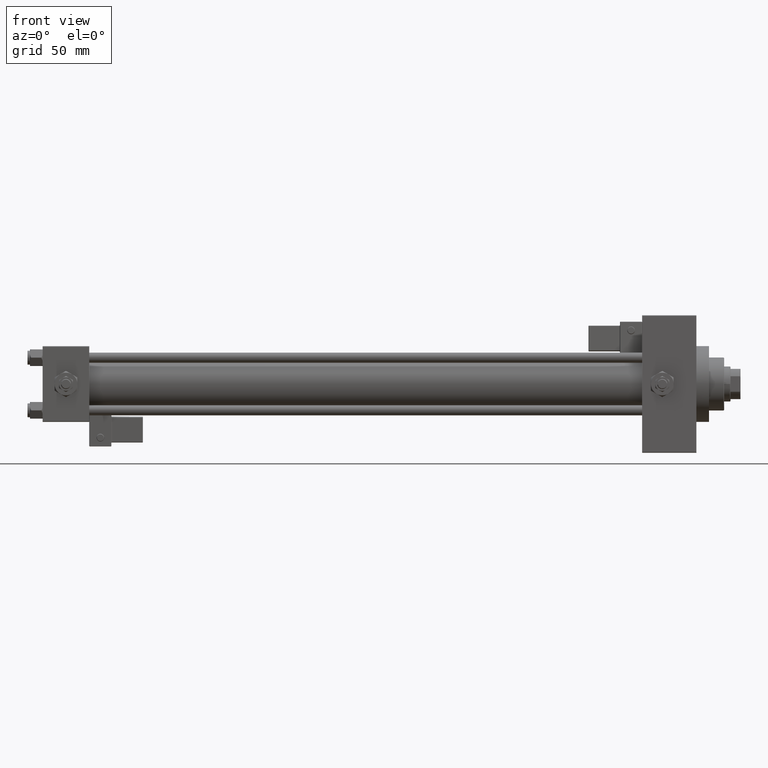
[diagram: clean part render]
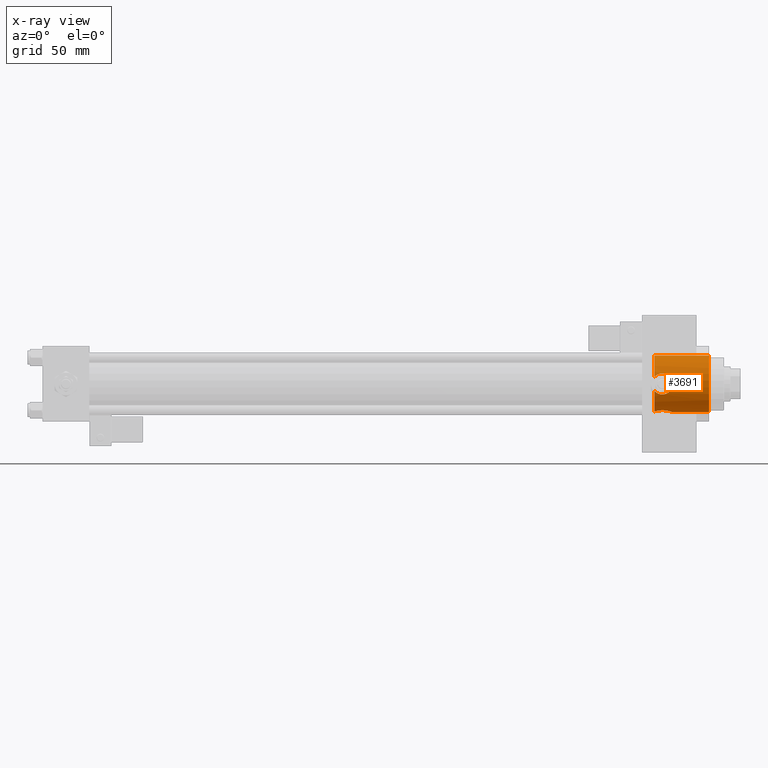
[diagram: x-ray — body ghosted, one internal face saturated and labeled with its STEP entity id]
A machine part, front view, then the same camera in x-ray: the body is ghosted and one INTERNAL B-rep face — a face not visible from any outside direction — is saturated and labeled: STEP entity #3691.
In plain terms, the highlighted cylindrical surface (edge-blend (fillet) strip) has radius 22.5 mm, axis along (1, 0, 0).
Its self-contained STEP definition (entity closure, byte-faithful):
#223 = CARTESIAN_POINT ( 'NONE',  ( 498.7930968072332121, -22.30658703498862039, 2.954723655153333794 ) ) ;
#357 = CARTESIAN_POINT ( 'NONE',  ( 485.5602391363179322, -21.59259860989613600, 6.336013317517917187 ) ) ;
#472 = CARTESIAN_POINT ( 'NONE',  ( 496.5068656785023791, -21.61137517055395207, 6.273349121788507787 ) ) ;
#984 = CARTESIAN_POINT ( 'NONE',  ( 491.0000000000000000, -20.90122245228732467, -8.330000000000026716 ) ) ;
#1228 = CARTESIAN_POINT ( 'NONE',  ( 499.2761281519647127, -22.47988508193238388, 1.094792065016547689 ) ) ;
#2081 = VERTEX_POINT ( 'NONE', #25986 ) ;
#2187 = CARTESIAN_POINT ( 'NONE',  ( 484.7400000000000091, 0.000000000000000000, -22.50000000000000355 ) ) ;
#2847 = CARTESIAN_POINT ( 'NONE',  ( 489.3814412075936957, -8.182171164303360555, -20.95982457214781292 ) ) ;
#3016 = CARTESIAN_POINT ( 'NONE',  ( 484.7400000000000091, -21.81854028114620547, 5.495570943951193499 ) ) ;
#3209 = CARTESIAN_POINT ( 'NONE',  ( 485.5599114470476820, -21.59276950757631397, -6.335268510715469148 ) ) ;
#3267 = DIRECTION ( 'NONE',  ( 1.000000000000000000, -0.000000000000000000, -0.000000000000000000 ) ) ;
#3691 = ADVANCED_FACE ( 'NONE', ( #18116 ), #10838, .F. ) ;
#3836 = ORIENTED_EDGE ( 'NONE', *, *, #43068, .T. ) ;
#4091 = CIRCLE ( 'NONE', #24078, 22.50000000000000355 ) ;
#4117 = CARTESIAN_POINT ( 'NONE',  ( 494.7100157079871678, -21.22206990084784906, 7.478228700289371034 ) ) ;
#4381 = CARTESIAN_POINT ( 'NONE',  ( 499.2744378885957985, -22.47926508187072159, -1.105184406068016267 ) ) ;
#4502 = EDGE_LOOP ( 'NONE', ( #29156, #49153, #3836, #24189, #41487, #13229, #18576, #36227, #35110 ) ) ;
#4890 = CARTESIAN_POINT ( 'NONE',  ( 499.0590295962805953, -22.40087039118136403, -2.177107464027099315 ) ) ;
#4984 = B_SPLINE_CURVE_WITH_KNOTS ( 'NONE', 3,
 ( #49837, #30041, #3209, #19085, #34982, #38113, #50865, #41791, #6106, #18327, #45942, #21973, #30285, #37854 ),
 .UNSPECIFIED., .F., .F.,
 ( 4, 2, 2, 2, 2, 2, 4 ),
 ( 0.000000000000000000, 0.001781041944051006774, 0.002671562916076575863, 0.003562083888102144952, 0.005343125832153285300, 0.006233646804178935921, 0.007124167776204587410 ),
 .UNSPECIFIED. ) ;
#5154 = CARTESIAN_POINT ( 'NONE',  ( 494.4549169580586749, -21.18338444856562575, -7.584632363023137813 ) ) ;
#5231 = EDGE_CURVE ( 'NONE', #10735, #7964, #49886, .T. ) ;
#5821 = AXIS2_PLACEMENT_3D ( 'NONE', #22545, #3267, #6914 ) ;
#6106 = CARTESIAN_POINT ( 'NONE',  ( 488.6423281438609365, -21.02576769369943221, -8.011595525461791212 ) ) ;
#6914 = DIRECTION ( 'NONE',  ( 0.000000000000000000, 0.000000000000000000, -1.000000000000000000 ) ) ;
#6931 = VERTEX_POINT ( 'NONE', #9126 ) ;
#6968 = CARTESIAN_POINT ( 'NONE',  ( 528.0000000000000000, 0.000000000000000000, 0.000000000000000000 ) ) ;
#7265 = CARTESIAN_POINT ( 'NONE',  ( 498.0799258618782801, -4.408873422199386383, -22.06660649451128009 ) ) ;
#7415 = DIRECTION ( 'NONE',  ( 0.000000000000000000, 0.000000000000000000, -1.000000000000000000 ) ) ;
#7964 = VERTEX_POINT ( 'NONE', #42946 ) ;
#8025 = CARTESIAN_POINT ( 'NONE',  ( 498.0675627765494369, -22.06333762759911110, 4.417272871008652402 ) ) ;
#8285 = CARTESIAN_POINT ( 'NONE',  ( 491.2735061075311478, -20.90122245228732467, -8.330000000000028493 ) ) ;
#8538 = CARTESIAN_POINT ( 'NONE',  ( 497.6131820133794577, -21.92059695852139356, 5.094123725193845154 ) ) ;
#8788 = CARTESIAN_POINT ( 'NONE',  ( 495.4162946174781723, -21.36157403235597840, -7.068107254197777856 ) ) ;
#9049 = CARTESIAN_POINT ( 'NONE',  ( 498.4672601230096802, -22.19473539390110872, 3.701775444982243979 ) ) ;
#9126 = CARTESIAN_POINT ( 'NONE',  ( 528.0000000000000000, 0.000000000000000000, -22.50000000000000355 ) ) ;
#10661 = CARTESIAN_POINT ( 'NONE',  ( 490.4273342078095652, -8.312974207010762839, -20.90801079915065586 ) ) ;
#10735 = VERTEX_POINT ( 'NONE', #36135 ) ;
#10838 = CYLINDRICAL_SURFACE ( 'NONE', #5821, 22.50000000000000355 ) ;
#10932 = CARTESIAN_POINT ( 'NONE',  ( 498.6639140372367933, -3.290714903397346180, -22.26132373405805609 ) ) ;
#11300 = DIRECTION ( 'NONE',  ( 1.000000000000000000, 0.000000000000000000, 0.000000000000000000 ) ) ;
#11436 = CARTESIAN_POINT ( 'NONE',  ( 489.7966742200958379, -8.253438808842149754, -20.93161653585325865 ) ) ;
#12187 = CARTESIAN_POINT ( 'NONE',  ( 493.7005757782755495, -21.06910324548279334, -7.898897868879322992 ) ) ;
#12214 = CARTESIAN_POINT ( 'NONE',  ( 484.7400000000000091, -5.495570943951186393, -21.81854028114620547 ) ) ;
#12402 = VECTOR ( 'NONE', #49161, 1000.000000000000000 ) ;
#12698 = CARTESIAN_POINT ( 'NONE',  ( 491.5471095774287846, -20.90659301079498888, -8.316562903860836187 ) ) ;
#12735 = CARTESIAN_POINT ( 'NONE',  ( 484.7400000000000091, -21.81854028114620547, -5.495570943951191722 ) ) ;
#12941 = CARTESIAN_POINT ( 'NONE',  ( 499.1137670994564246, -22.42078891501157756, 1.905695455502135927 ) ) ;
#13198 = CARTESIAN_POINT ( 'NONE',  ( 496.5057538670176314, -21.61103907902399968, -6.274735597831449851 ) ) ;
#13229 = ORIENTED_EDGE ( 'NONE', *, *, #23663, .F. ) ;
#14565 = CARTESIAN_POINT ( 'NONE',  ( 495.4717217021023430, -7.077548616542889803, -21.36464718587223999 ) ) ;
#14686 = DIRECTION ( 'NONE',  ( 0.000000000000000000, 0.000000000000000000, -1.000000000000000000 ) ) ;
#15004 = CARTESIAN_POINT ( 'NONE',  ( 488.6551550182247183, -21.03047559937811073, 7.998696374284315347 ) ) ;
#15341 = CARTESIAN_POINT ( 'NONE',  ( 491.0645977083230491, -8.332469890991696104, -20.90023832775081658 ) ) ;
#15752 = DIRECTION ( 'NONE',  ( 1.000000000000000000, 0.000000000000000000, 0.000000000000000000 ) ) ;
#16093 = CARTESIAN_POINT ( 'NONE',  ( 493.6924408181927220, -21.07232387524589967, 7.887613602273581215 ) ) ;
#16227 = CARTESIAN_POINT ( 'NONE',  ( 488.0904099977523742, -21.10090803564296991, 7.811000428585683331 ) ) ;
#16346 = CARTESIAN_POINT ( 'NONE',  ( 492.6405019173680557, -20.96042511169567746, 8.180472788441880638 ) ) ;
#16862 = CARTESIAN_POINT ( 'NONE',  ( 493.1797018052744193, -21.00767761359998076, -8.058598816431034706 ) ) ;
#16983 = CARTESIAN_POINT ( 'NONE',  ( 484.7400000000000091, 2.755455298081545172E-15, 22.50000000000000355 ) ) ;
#17107 = CARTESIAN_POINT ( 'NONE',  ( 498.2094365790031816, -22.10932566242729180, 4.181762714824291294 ) ) ;
#17640 = CARTESIAN_POINT ( 'NONE',  ( 484.7400000000000091, 2.755455298081545172E-15, 22.50000000000000355 ) ) ;
#18116 = FACE_OUTER_BOUND ( 'NONE', #4502, .T. ) ;
#18156 = VERTEX_POINT ( 'NONE', #22267 ) ;
#18327 = CARTESIAN_POINT ( 'NONE',  ( 489.5159917530596090, -20.95182994654722819, -8.202162177390816211 ) ) ;
#18474 = CARTESIAN_POINT ( 'NONE',  ( 498.8195974207915242, -2.901808889280243609, -22.31576175661178851 ) ) ;
#18576 = ORIENTED_EDGE ( 'NONE', *, *, #39308, .T. ) ;
#18637 = CARTESIAN_POINT ( 'NONE',  ( 488.9433953409140940, -21.00018004101064051, 8.077560274214647507 ) ) ;
#18718 = CARTESIAN_POINT ( 'NONE',  ( 488.5613052431536971, -7.976241308371011307, -21.03905286955200538 ) ) ;
#18983 = AXIS2_PLACEMENT_3D ( 'NONE', #46968, #11300, #14686 ) ;
#19085 = CARTESIAN_POINT ( 'NONE',  ( 486.2630478035205783, -21.43006822195327032, -6.858243691352325477 ) ) ;
#19243 = CARTESIAN_POINT ( 'NONE',  ( 494.7487363894115333, -7.487015359358466959, -21.22021487626640379 ) ) ;
#20004 = CARTESIAN_POINT ( 'NONE',  ( 498.0690759461940615, -22.06383064093185808, -4.414719317479117500 ) ) ;
#20142 = CARTESIAN_POINT ( 'NONE',  ( 491.0000000000000000, -20.90122245228732467, 8.330000000000026716 ) ) ;
#20257 = CARTESIAN_POINT ( 'NONE',  ( 492.0945140872406114, -20.92807357394548973, -8.262359610693557954 ) ) ;
#20501 = CARTESIAN_POINT ( 'NONE',  ( 494.7029940750481387, -21.22539488743753111, -7.466680409794089535 ) ) ;
#21095 = CARTESIAN_POINT ( 'NONE',  ( 491.0000000000000000, -20.90122245228732467, -8.330000000000026716 ) ) ;
#21918 = EDGE_CURVE ( 'NONE', #2081, #18156, #34190, .T. ) ;
#21973 = CARTESIAN_POINT ( 'NONE',  ( 490.4069016165261132, -20.90753896790106836, -8.314203881045562738 ) ) ;
#22267 = CARTESIAN_POINT ( 'NONE',  ( 484.7400000000000091, -5.495570943951186393, -21.81854028114620547 ) ) ;
#22378 = CARTESIAN_POINT ( 'NONE',  ( 498.2951098973458670, -4.042988316980855146, -22.13706359110743094 ) ) ;
#22545 = CARTESIAN_POINT ( 'NONE',  ( 484.7400000000000091, 0.000000000000000000, 0.000000000000000000 ) ) ;
#22638 = CARTESIAN_POINT ( 'NONE',  ( 499.1699291769579077, -1.679278209817692602, -22.44115179447787511 ) ) ;
#23150 = CARTESIAN_POINT ( 'NONE',  ( 497.3413009043437683, -5.417501232309198222, -21.84028767977484975 ) ) ;
#23663 = EDGE_CURVE ( 'NONE', #49033, #18156, #51469, .T. ) ;
#23915 = CARTESIAN_POINT ( 'NONE',  ( 496.0823739737878100, -21.50581369923292385, 6.621894569807097675 ) ) ;
#24078 = AXIS2_PLACEMENT_3D ( 'NONE', #6968, #38486, #38995 ) ;
#24178 = CARTESIAN_POINT ( 'NONE',  ( 498.9001442294269282, -22.34355564568057417, -2.697317211183205110 ) ) ;
#24189 = ORIENTED_EDGE ( 'NONE', *, *, #40142, .F. ) ;
#24327 = VERTEX_POINT ( 'NONE', #21095 ) ;
#24425 = CARTESIAN_POINT ( 'NONE',  ( 491.0000000000000000, -20.90122245228732467, 8.330000000000026716 ) ) ;
#24447 = CARTESIAN_POINT ( 'NONE',  ( 485.3158746668533468, -6.103616970294139854, -21.65812902678066010 ) ) ;
#24677 = CARTESIAN_POINT ( 'NONE',  ( 496.0889559316784130, -21.50736897996589647, -6.616873940636518903 ) ) ;
#24680 = EDGE_CURVE ( 'NONE', #40321, #37582, #44476, .T. ) ;
#25986 = CARTESIAN_POINT ( 'NONE',  ( 499.3299999999999841, -1.030804544852296126E-23, -22.50000000000000355 ) ) ;
#26812 = CARTESIAN_POINT ( 'NONE',  ( 497.6031555897931185, -5.095277354536532854, -21.91828998158685238 ) ) ;
#27062 = CARTESIAN_POINT ( 'NONE',  ( 499.2979863424998825, -0.8432915997223032756, -22.48808859033163898 ) ) ;
#28066 = CARTESIAN_POINT ( 'NONE',  ( 497.2760300427459583, -21.81999627700182032, -5.504278278704892280 ) ) ;
#28090 = CARTESIAN_POINT ( 'NONE',  ( 487.3830852825356601, -7.515492575748715431, -21.20842510955138494 ) ) ;
#28110 = EDGE_CURVE ( 'NONE', #24327, #10735, #30530, .T. ) ;
#28333 = CARTESIAN_POINT ( 'NONE',  ( 497.6186959168769022, -21.92229428948382619, -5.086500752054652352 ) ) ;
#28579 = CARTESIAN_POINT ( 'NONE',  ( 492.3698902534409854, -20.94433763564106243, -8.221198477384719538 ) ) ;
#28602 = CARTESIAN_POINT ( 'NONE',  ( 485.9550632640747949, -6.641689111475792551, -21.49922460944220859 ) ) ;
#28829 = CARTESIAN_POINT ( 'NONE',  ( 498.5839448562603593, -22.23438073986799424, 3.456375289581921528 ) ) ;
#29090 = CARTESIAN_POINT ( 'NONE',  ( 497.2706970584281976, -21.81851527395823354, 5.509885407731411000 ) ) ;
#29156 = ORIENTED_EDGE ( 'NONE', *, *, #47316, .F. ) ;
#30041 = CARTESIAN_POINT ( 'NONE',  ( 485.1302032349917681, -21.70658630899340480, -5.940051103694862000 ) ) ;
#30285 = CARTESIAN_POINT ( 'NONE',  ( 490.7033935767806270, -20.90122245228732467, -8.330000000000028493 ) ) ;
#30434 = CARTESIAN_POINT ( 'NONE',  ( 499.3299999999999272, -0.4228661663087356914, -22.50000000000000355 ) ) ;
#30530 = B_SPLINE_CURVE_WITH_KNOTS ( 'NONE', 3,
 ( #984, #8285, #12698, #20257, #28579, #16862, #12187, #5154, #20501, #44463, #8788, #24677, #13198, #28066, #28333, #20004, #32739, #40556, #43962, #24178, #4890, #4381, #48621, #36907, #1228, #12941, #40053, #36139, #223, #28829, #9049, #17107, #8025, #8538, #29090, #472, #23915, #39792, #4117, #35890, #16093, #36390, #16346, #32229, #48117, #44222, #24425 ),
 .UNSPECIFIED., .F., .F.,
 ( 4, 2, 2, 2, 2, 2, 2, 2, 2, 2, 2, 2, 2, 2, 2, 2, 2, 2, 2, 2, 2, 1, 2, 4 ),
 ( 0.007124167776204587410, 0.007945333151147631473, 0.008766498526090673801, 0.01040882927597692326, 0.01122999465092004885, 0.01205116002586317445, 0.01369349077574942217, 0.01533582152563566815, 0.01615698690057874864, 0.01697815227552182393, 0.01862048302540804737, 0.02026281377529426733, 0.02190514452518049077, 0.02272630990012360075, 0.02354747527506670726, 0.02436864065000982071, 0.02518980602495293070, 0.02683213677483914719, 0.02847446752472536716, 0.03011679827461158712, 0.03093796364955462078, 0.03175912902449765096, 0.03258029439944069156, 0.03340145977438372521 ),
 .UNSPECIFIED. ) ;
#30869 = CARTESIAN_POINT ( 'NONE',  ( 487.0214695962672522, -21.27506732941323975, 7.324357775039906038 ) ) ;
#31206 = CARTESIAN_POINT ( 'NONE',  ( 490.6388607599011493, -8.324890737869448998, -20.90325837862611280 ) ) ;
#31994 = CARTESIAN_POINT ( 'NONE',  ( 488.1560306839755299, -7.840697625789181835, -21.09036237300174221 ) ) ;
#32229 = CARTESIAN_POINT ( 'NONE',  ( 492.1003494092674373, -20.92838892255955230, 8.261561365096225629 ) ) ;
#32255 = CARTESIAN_POINT ( 'NONE',  ( 485.0173696454154424, -5.811522461638650050, -21.73895961452384284 ) ) ;
#32739 = CARTESIAN_POINT ( 'NONE',  ( 498.2086838033528124, -22.10908057845582064, -4.183043294148134805 ) ) ;
#34190 = B_SPLINE_CURVE_WITH_KNOTS ( 'NONE', 3,
 ( #42183, #30434, #27062, #22638, #42953, #18474, #10932, #22378, #7265, #26812, #23150, #47108, #39041, #14565, #19243, #35132, #38525, #46337, #15341, #31206, #10661, #11436, #2847, #18718, #31994, #28090, #43985, #47888, #28602, #24447, #32255, #12214 ),
 .UNSPECIFIED., .F., .F.,
 ( 4, 2, 2, 2, 2, 2, 2, 2, 2, 2, 2, 2, 2, 2, 2, 4 ),
 ( 0.02026158208243481959, 0.02152696880141136485, 0.02279235552038791010, 0.02405774223936445189, 0.02532312895834099714, 0.02658851567731753893, 0.02785390239629408418, 0.03038467583424717122, 0.03291544927220025479, 0.03354814263168848232, 0.03418083599117671678, 0.03544622271015317877, 0.03671160942912964076, 0.03797699614810609581, 0.03924238286708256473, 0.04050776958605901978 ),
 .UNSPECIFIED. ) ;
#34982 = CARTESIAN_POINT ( 'NONE',  ( 486.5072799748209036, -21.37716939153677842, -7.020813959009472249 ) ) ;
#35049 = CARTESIAN_POINT ( 'NONE',  ( 485.1294213925111194, -21.70681062894636071, 5.939160507616776385 ) ) ;
#35110 = ORIENTED_EDGE ( 'NONE', *, *, #5231, .T. ) ;
#35132 = CARTESIAN_POINT ( 'NONE',  ( 493.1626272159217024, -8.088971939222137308, -20.99812971082578272 ) ) ;
#35890 = CARTESIAN_POINT ( 'NONE',  ( 493.9526680260205467, -21.10727557153275313, 7.793937181550339766 ) ) ;
#36022 = CARTESIAN_POINT ( 'NONE',  ( 486.2697604933278512, -21.42856317882726458, 6.862982220796715715 ) ) ;
#36135 = CARTESIAN_POINT ( 'NONE',  ( 491.0000000000000000, -20.90122245228732467, 8.330000000000026716 ) ) ;
#36139 = CARTESIAN_POINT ( 'NONE',  ( 498.8855645018618361, -22.33915006169611317, 2.698472660097872122 ) ) ;
#36227 = ORIENTED_EDGE ( 'NONE', *, *, #28110, .T. ) ;
#36390 = CARTESIAN_POINT ( 'NONE',  ( 493.1693074062156370, -21.01188926694717907, 8.047222581461236146 ) ) ;
#36907 = CARTESIAN_POINT ( 'NONE',  ( 499.3299185521604500, -22.49996984620014118, 0.5500617071476527897 ) ) ;
#37582 = VERTEX_POINT ( 'NONE', #45404 ) ;
#37854 = CARTESIAN_POINT ( 'NONE',  ( 491.0000000000000000, -20.90122245228732467, -8.330000000000026716 ) ) ;
#38113 = CARTESIAN_POINT ( 'NONE',  ( 487.0164830714165305, -21.27597812299411828, -7.321745335051963899 ) ) ;
#38446 = CARTESIAN_POINT ( 'NONE',  ( 490.4005171616785788, -20.90122245228732822, 8.330000000000030269 ) ) ;
#38486 = DIRECTION ( 'NONE',  ( 1.000000000000000000, 0.000000000000000000, 0.000000000000000000 ) ) ;
#38525 = CARTESIAN_POINT ( 'NONE',  ( 492.3403738839044763, -8.265299052519075929, -20.92696222447261789 ) ) ;
#38692 = CARTESIAN_POINT ( 'NONE',  ( 487.2813383015107433, -21.22781254901978443, 7.459669642192456429 ) ) ;
#38995 = DIRECTION ( 'NONE',  ( 0.000000000000000000, 0.000000000000000000, -1.000000000000000000 ) ) ;
#39041 = CARTESIAN_POINT ( 'NONE',  ( 496.4597915280917846, -6.305104980880346766, -21.60018777995134442 ) ) ;
#39308 = EDGE_CURVE ( 'NONE', #49033, #24327, #4984, .T. ) ;
#39792 = CARTESIAN_POINT ( 'NONE',  ( 495.1856674176399338, -21.31171765456205591, 7.222201961450741337 ) ) ;
#40053 = CARTESIAN_POINT ( 'NONE',  ( 499.0457606325067559, -22.39619972498787703, 2.174768506008429636 ) ) ;
#40142 = EDGE_CURVE ( 'NONE', #2081, #6931, #46184, .T. ) ;
#40187 = CARTESIAN_POINT ( 'NONE',  ( 489.8116114218195776, -20.92703331906125896, 8.266041580867401706 ) ) ;
#40321 = VERTEX_POINT ( 'NONE', #16983 ) ;
#40556 = CARTESIAN_POINT ( 'NONE',  ( 498.4663613352666971, -22.19443338850295078, -3.703568790865944482 ) ) ;
#41487 = ORIENTED_EDGE ( 'NONE', *, *, #21918, .T. ) ;
#41791 = CARTESIAN_POINT ( 'NONE',  ( 488.0838949812958845, -21.09704273054901691, -7.825085139990061833 ) ) ;
#42183 = CARTESIAN_POINT ( 'NONE',  ( 499.3299999999999841, -1.030804544852296126E-23, -22.50000000000000355 ) ) ;
#42389 = AXIS2_PLACEMENT_3D ( 'NONE', #42843, #15752, #7415 ) ;
#42843 = CARTESIAN_POINT ( 'NONE',  ( 484.7400000000000091, 0.000000000000000000, 0.000000000000000000 ) ) ;
#42946 = CARTESIAN_POINT ( 'NONE',  ( 484.7400000000000091, -21.81854028114620547, 5.495570943951193499 ) ) ;
#42953 = CARTESIAN_POINT ( 'NONE',  ( 499.0725935047803432, -2.097577831626822320, -22.40566635581345523 ) ) ;
#43068 = EDGE_CURVE ( 'NONE', #37582, #6931, #4091, .T. ) ;
#43962 = CARTESIAN_POINT ( 'NONE',  ( 498.5849097978502869, -22.23470781577740141, -3.454383896492984718 ) ) ;
#43985 = CARTESIAN_POINT ( 'NONE',  ( 487.0116854358694809, -7.325101535721561419, -21.27547271216654678 ) ) ;
#44222 = CARTESIAN_POINT ( 'NONE',  ( 491.2770915216183312, -20.90122245228731757, 8.330000000000028493 ) ) ;
#44463 = CARTESIAN_POINT ( 'NONE',  ( 495.1841016531933519, -21.31459428776614118, -7.208104800680185775 ) ) ;
#44476 = LINE ( 'NONE', #17640, #12402 ) ;
#44753 = VECTOR ( 'NONE', #45677, 1000.000000000000000 ) ;
#45404 = CARTESIAN_POINT ( 'NONE',  ( 528.0000000000000000, 2.755455298081545172E-15, 22.50000000000000355 ) ) ;
#45677 = DIRECTION ( 'NONE',  ( 1.000000000000000000, -0.000000000000000000, -0.000000000000000000 ) ) ;
#45727 = CIRCLE ( 'NONE', #42389, 22.50000000000000355 ) ;
#45942 = CARTESIAN_POINT ( 'NONE',  ( 489.8141494303989703, -20.93274137745089902, -8.250546060391975800 ) ) ;
#46184 = LINE ( 'NONE', #2187, #44753 ) ;
#46337 = CARTESIAN_POINT ( 'NONE',  ( 491.2794540716097345, -8.328024065339578286, -20.90201419577500275 ) ) ;
#46512 = CARTESIAN_POINT ( 'NONE',  ( 486.5161894936351246, -21.37532087138409054, 7.026404794290298739 ) ) ;
#46968 = CARTESIAN_POINT ( 'NONE',  ( 484.7400000000000091, 0.000000000000000000, 0.000000000000000000 ) ) ;
#47108 = CARTESIAN_POINT ( 'NONE',  ( 496.7709310325001297, -6.021442665975475173, -21.68155238348414926 ) ) ;
#47316 = EDGE_CURVE ( 'NONE', #40321, #7964, #45727, .T. ) ;
#47888 = CARTESIAN_POINT ( 'NONE',  ( 486.2981393575764173, -6.888851288155077413, -21.42070446004186479 ) ) ;
#47997 = CARTESIAN_POINT ( 'NONE',  ( 487.8158094925857995, -21.14073437645953035, 7.702989472338105159 ) ) ;
#48117 = CARTESIAN_POINT ( 'NONE',  ( 491.5543731579531368, -20.90679372045596907, 8.316058887085105766 ) ) ;
#48621 = CARTESIAN_POINT ( 'NONE',  ( 499.3300812647951261, -22.50003008603270516, -0.5475920828583199507 ) ) ;
#49033 = VERTEX_POINT ( 'NONE', #12735 ) ;
#49153 = ORIENTED_EDGE ( 'NONE', *, *, #24680, .T. ) ;
#49161 = DIRECTION ( 'NONE',  ( 1.000000000000000000, -0.000000000000000000, -0.000000000000000000 ) ) ;
#49837 = CARTESIAN_POINT ( 'NONE',  ( 484.7400000000000091, -21.81854028114620547, -5.495570943951191722 ) ) ;
#49886 = B_SPLINE_CURVE_WITH_KNOTS ( 'NONE', 3,
 ( #20142, #38446, #40187, #18637, #15004, #16227, #47997, #38692, #30869, #46512, #36022, #357, #35049, #3016 ),
 .UNSPECIFIED., .F., .F.,
 ( 4, 2, 2, 2, 2, 2, 4 ),
 ( 0.03340145977438372521, 0.03517803722730257487, 0.03606632595376200318, 0.03695461468022142454, 0.03784290340668085284, 0.03873119213314028114, 0.04050776958605899897 ),
 .UNSPECIFIED. ) ;
#50865 = CARTESIAN_POINT ( 'NONE',  ( 487.2800545255195743, -21.22802876403584804, -7.459060741738390732 ) ) ;
#51469 = CIRCLE ( 'NONE', #18983, 22.50000000000000355 ) ;